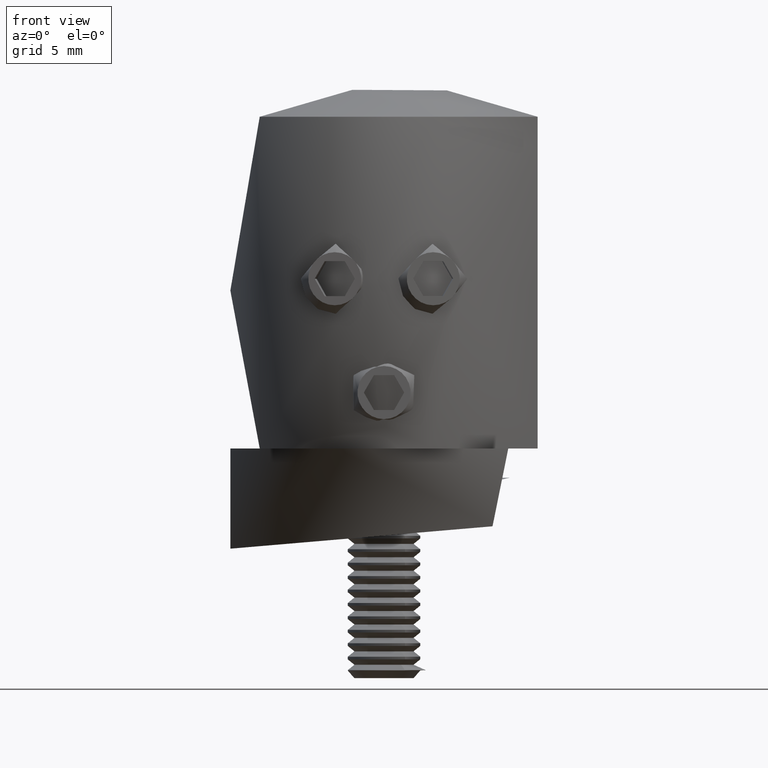
[diagram: clean part render]
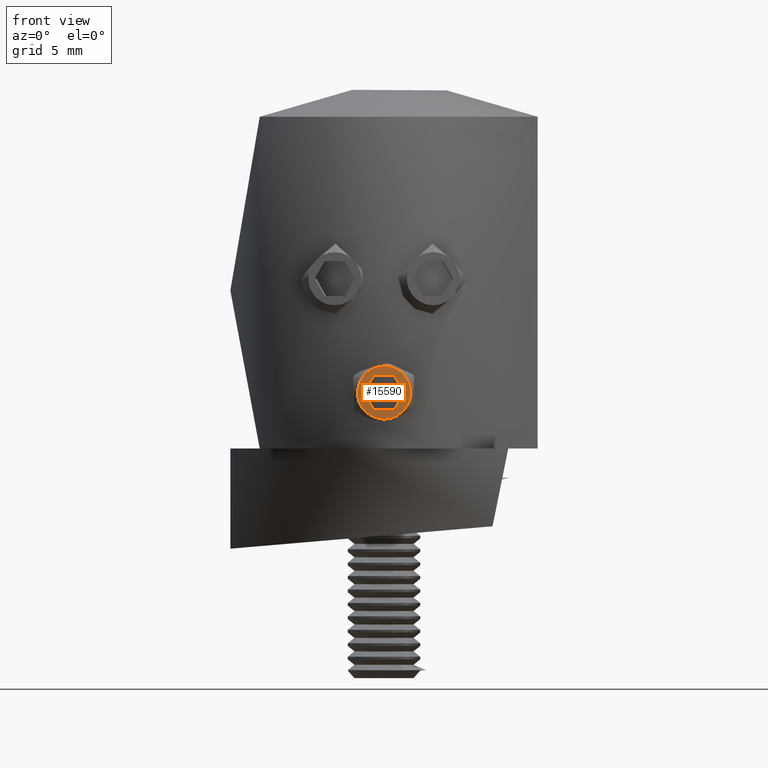
[diagram: same view with one face highlighted and labeled with its STEP entity id]
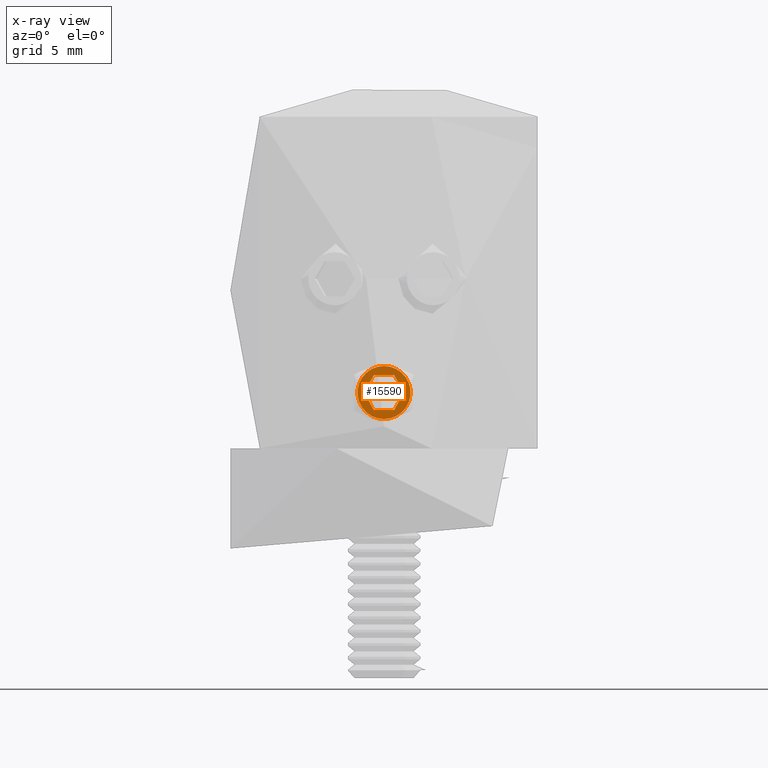
[diagram: x-ray of the same camera — body ghosted, the highlighted face saturated]
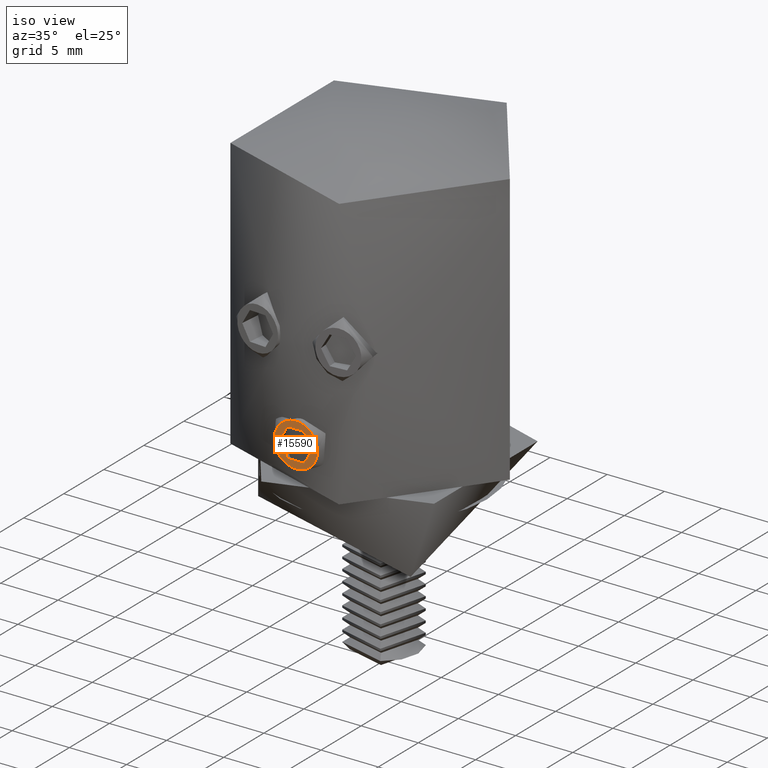
[diagram: same view with one face highlighted and labeled with its STEP entity id]
A machine part, front view. The second image highlights one B-rep face of the part: STEP entity #15590.
The next image is the same camera in x-ray: the body ghosted, the highlighted face saturated — about 0% of this face is hidden behind the body in this view.
A second angle (iso view) of the same face is appended — the face is thin or edge-on in the first view.
In plain terms, the highlighted planar face has unit normal (0, -1, 0).
Its self-contained STEP definition (entity closure, byte-faithful):
#347 = VECTOR ( 'NONE', #14748, 1000.000000000000100 ) ;
#474 = ORIENTED_EDGE ( 'NONE', *, *, #12077, .F. ) ;
#856 = VECTOR ( 'NONE', #3162, 1000.000000000000100 ) ;
#1084 = CIRCLE ( 'NONE', #20392, 1.900000000000000100 ) ;
#1398 = VERTEX_POINT ( 'NONE', #9742 ) ;
#2142 = ORIENTED_EDGE ( 'NONE', *, *, #27282, .F. ) ;
#2397 = VERTEX_POINT ( 'NONE', #6983 ) ;
#3155 = VERTEX_POINT ( 'NONE', #16878 ) ;
#3162 = DIRECTION ( 'NONE',  ( 0.0000000000000000000, 0.4999999999999996100, -0.8660254037844388200 ) ) ;
#3218 = DIRECTION ( 'NONE',  ( 0.0000000000000000000, -0.4999999999999998900, 0.8660254037844387100 ) ) ;
#5026 = CARTESIAN_POINT ( 'NONE',  ( 6.000000000000000000, -1.443375672974064500, -1.084202172485504400E-016 ) ) ;
#5171 = VECTOR ( 'NONE', #13301, 1000.000000000000000 ) ;
#5850 = DIRECTION ( 'NONE',  ( 1.000000000000000000, 0.0000000000000000000, 0.0000000000000000000 ) ) ;
#5859 = FACE_BOUND ( 'NONE', #14190, .T. ) ;
#6158 = DIRECTION ( 'NONE',  ( 0.0000000000000000000, -1.000000000000000000, 0.0000000000000000000 ) ) ;
#6357 = EDGE_CURVE ( 'NONE', #3155, #3155, #1084, .T. ) ;
#6555 = LINE ( 'NONE', #19013, #9308 ) ;
#6983 = CARTESIAN_POINT ( 'NONE',  ( 6.000000000000000000, 0.7216878364870326100, 1.250000000000000200 ) ) ;
#6996 = LINE ( 'NONE', #12907, #9401 ) ;
#7562 = CARTESIAN_POINT ( 'NONE',  ( 6.000000000000000000, 1.443375672974064800, -2.774817153268599200E-017 ) ) ;
#7976 = CARTESIAN_POINT ( 'NONE',  ( 6.000000000000000000, 0.0000000000000000000, 0.0000000000000000000 ) ) ;
#8171 = PLANE ( 'NONE',  #10909 ) ;
#8653 = VERTEX_POINT ( 'NONE', #24552 ) ;
#9275 = ORIENTED_EDGE ( 'NONE', *, *, #18661, .F. ) ;
#9308 = VECTOR ( 'NONE', #21127, 1000.000000000000000 ) ;
#9401 = VECTOR ( 'NONE', #6158, 1000.000000000000000 ) ;
#9742 = CARTESIAN_POINT ( 'NONE',  ( 6.000000000000000000, 0.7216878364870326100, -1.249999999999999600 ) ) ;
#10340 = CARTESIAN_POINT ( 'NONE',  ( 6.000000000000000000, -0.7216878364870318300, 1.250000000000000200 ) ) ;
#10542 = EDGE_CURVE ( 'NONE', #8653, #19053, #17895, .T. ) ;
#10909 = AXIS2_PLACEMENT_3D ( 'NONE', #7976, #5850, #25738 ) ;
#11448 = ORIENTED_EDGE ( 'NONE', *, *, #15577, .F. ) ;
#11754 = CARTESIAN_POINT ( 'NONE',  ( 6.000000000000000000, 1.443375672974064800, -2.774817153268599200E-017 ) ) ;
#12030 = CARTESIAN_POINT ( 'NONE',  ( 6.000000000000000000, -1.443375672974064500, -2.081695953396925700E-016 ) ) ;
#12077 = EDGE_CURVE ( 'NONE', #19053, #15992, #25644, .T. ) ;
#12358 = VECTOR ( 'NONE', #3218, 1000.000000000000100 ) ;
#12695 = LINE ( 'NONE', #7562, #12358 ) ;
#12907 = CARTESIAN_POINT ( 'NONE',  ( 6.000000000000000000, 0.7216878364870326100, 1.250000000000000200 ) ) ;
#13301 = DIRECTION ( 'NONE',  ( 0.0000000000000000000, 1.000000000000000000, 0.0000000000000000000 ) ) ;
#14190 = EDGE_LOOP ( 'NONE', ( #21156, #2142, #9275, #11448, #22382, #474 ) ) ;
#14748 = DIRECTION ( 'NONE',  ( 0.0000000000000000000, -0.5000000000000001100, -0.8660254037844386000 ) ) ;
#15180 = EDGE_CURVE ( 'NONE', #15992, #1398, #16884, .T. ) ;
#15577 = EDGE_CURVE ( 'NONE', #1398, #26658, #6555, .T. ) ;
#15590 = ADVANCED_FACE ( 'NONE', ( #5859, #15827 ), #8171, .T. ) ;
#15827 = FACE_OUTER_BOUND ( 'NONE', #24354, .T. ) ;
#15992 = VERTEX_POINT ( 'NONE', #16189 ) ;
#16189 = CARTESIAN_POINT ( 'NONE',  ( 6.000000000000000000, -0.7216878364870333900, -1.249999999999999600 ) ) ;
#16878 = CARTESIAN_POINT ( 'NONE',  ( 6.000000000000000000, 0.0000000000000000000, -1.900000000000000100 ) ) ;
#16884 = LINE ( 'NONE', #28545, #5171 ) ;
#17046 = DIRECTION ( 'NONE',  ( 0.0000000000000000000, 0.0000000000000000000, -1.000000000000000000 ) ) ;
#17895 = LINE ( 'NONE', #10340, #347 ) ;
#18661 = EDGE_CURVE ( 'NONE', #26658, #2397, #12695, .T. ) ;
#19013 = CARTESIAN_POINT ( 'NONE',  ( 6.000000000000000000, 0.7216878364870326100, -1.249999999999999600 ) ) ;
#19053 = VERTEX_POINT ( 'NONE', #5026 ) ;
#19444 = DIRECTION ( 'NONE',  ( 1.000000000000000000, 0.0000000000000000000, 0.0000000000000000000 ) ) ;
#20392 = AXIS2_PLACEMENT_3D ( 'NONE', #21370, #19444, #17046 ) ;
#21127 = DIRECTION ( 'NONE',  ( 0.0000000000000000000, 0.5000000000000001100, 0.8660254037844386000 ) ) ;
#21156 = ORIENTED_EDGE ( 'NONE', *, *, #10542, .F. ) ;
#21370 = CARTESIAN_POINT ( 'NONE',  ( 6.000000000000000000, 0.0000000000000000000, 0.0000000000000000000 ) ) ;
#22382 = ORIENTED_EDGE ( 'NONE', *, *, #15180, .F. ) ;
#23198 = ORIENTED_EDGE ( 'NONE', *, *, #6357, .T. ) ;
#24354 = EDGE_LOOP ( 'NONE', ( #23198 ) ) ;
#24552 = CARTESIAN_POINT ( 'NONE',  ( 6.000000000000000000, -0.7216878364870318300, 1.250000000000000200 ) ) ;
#25644 = LINE ( 'NONE', #12030, #856 ) ;
#25738 = DIRECTION ( 'NONE',  ( 0.0000000000000000000, 0.0000000000000000000, -1.000000000000000000 ) ) ;
#26658 = VERTEX_POINT ( 'NONE', #11754 ) ;
#27282 = EDGE_CURVE ( 'NONE', #2397, #8653, #6996, .T. ) ;
#28545 = CARTESIAN_POINT ( 'NONE',  ( 6.000000000000000000, -0.7216878364870333900, -1.249999999999999600 ) ) ;